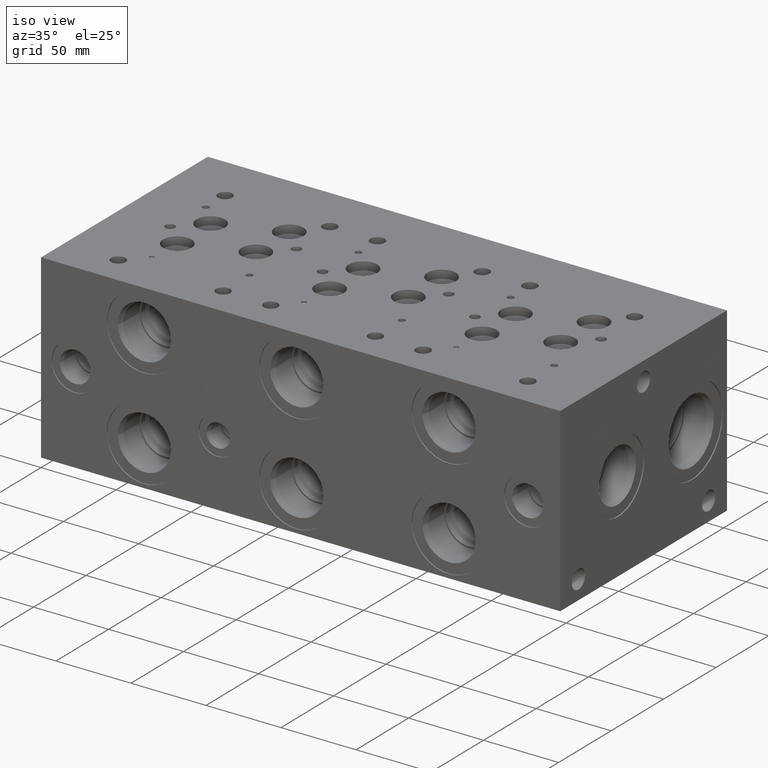
[diagram: clean part render]
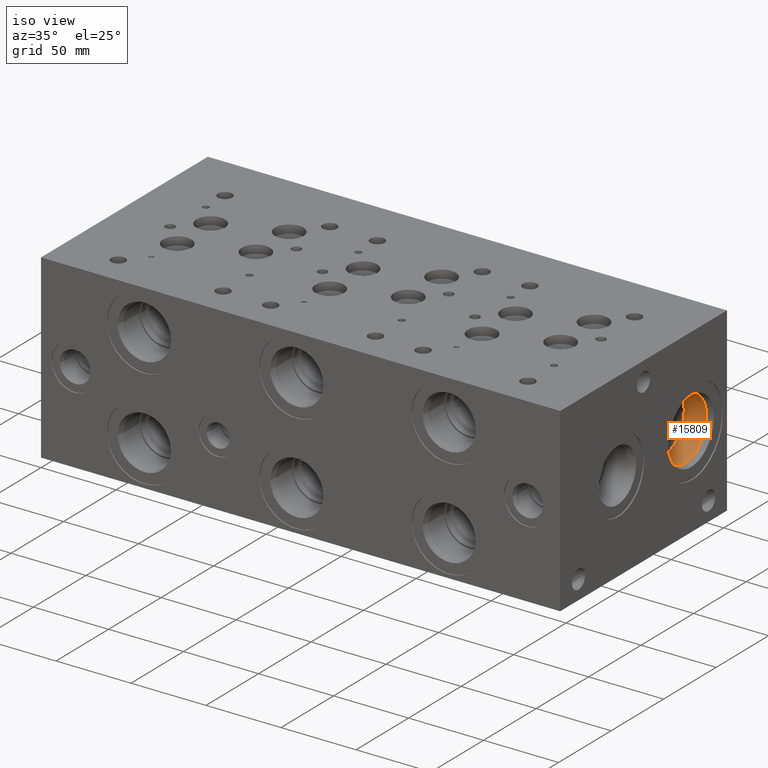
[diagram: same view with one face highlighted and labeled with its STEP entity id]
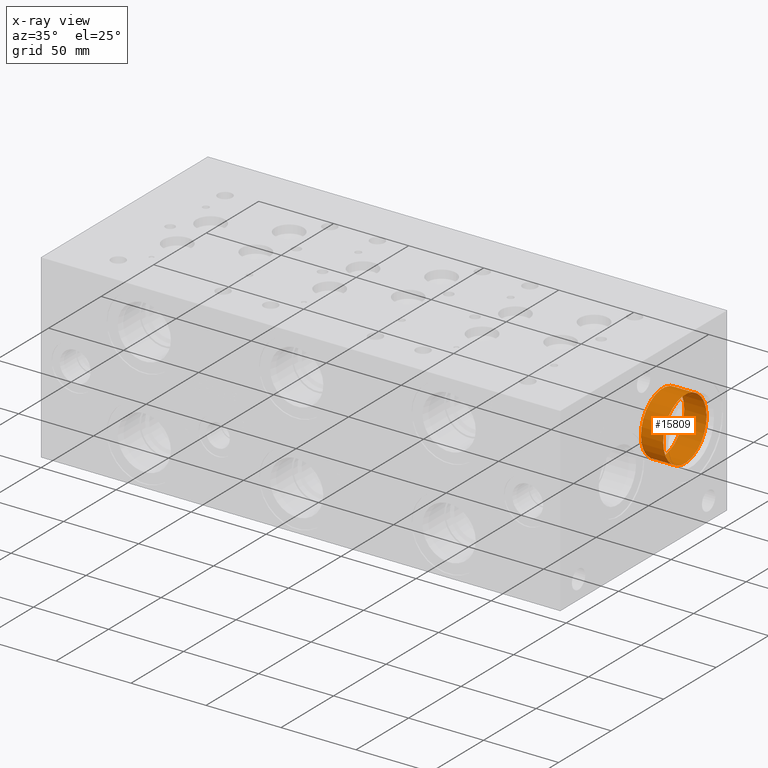
[diagram: x-ray of the same camera — body ghosted, the highlighted face saturated]
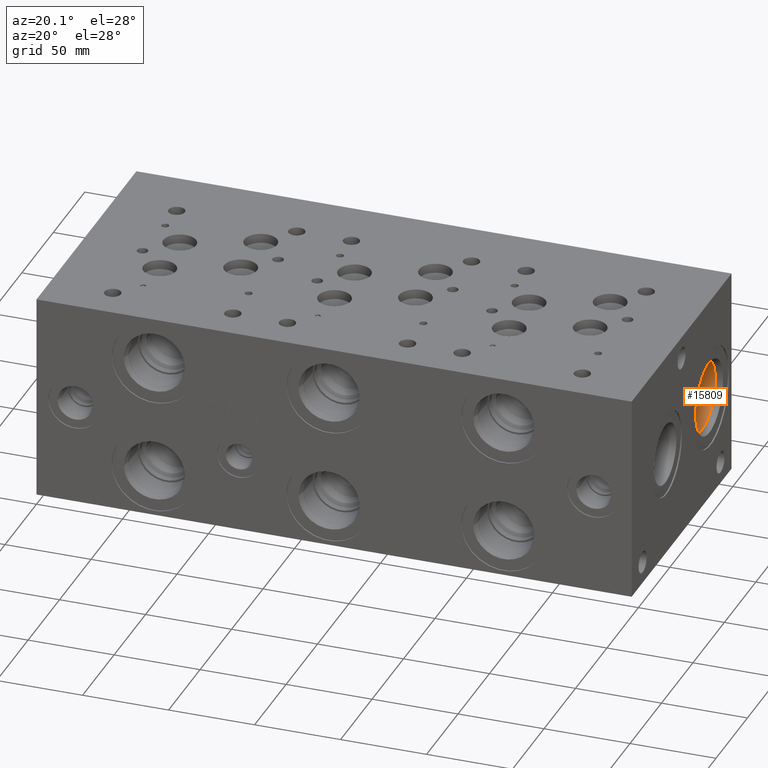
[diagram: same view with one face highlighted and labeled with its STEP entity id]
A machine part, iso view. The second image highlights one B-rep face of the part: STEP entity #15809.
The next image is the same camera in x-ray: the body ghosted, the highlighted face saturated — about 0% of this face is hidden behind the body in this view.
A second angle (auxiliary view) of the same face is appended — the face is thin or edge-on in the first view.
In plain terms, the highlighted cylindrical surface (bore or boss wall) has radius 20.6375 mm, axis along (1, 0, 0).
Its self-contained STEP definition (entity closure, byte-faithful):
#15=CYLINDRICAL_SURFACE('',#16559,20.6375);
#307=CIRCLE('',#16556,20.6375);
#308=CIRCLE('',#16557,20.6375);
#310=CIRCLE('',#16560,20.6375);
#1943=FACE_OUTER_BOUND('',#2860,.T.);
#2860=EDGE_LOOP('',(#12813,#12814,#12815,#12816,#12817));
#4410=LINE('',#26242,#5819);
#5819=VECTOR('',#19361,20.6375);
#7091=VERTEX_POINT('',#26233);
#7092=VERTEX_POINT('',#26234);
#7094=VERTEX_POINT('',#26240);
#9131=EDGE_CURVE('',#7091,#7092,#307,.T.);
#9132=EDGE_CURVE('',#7092,#7091,#308,.T.);
#9134=EDGE_CURVE('',#7094,#7094,#310,.T.);
#9135=EDGE_CURVE('',#7094,#7092,#4410,.T.);
#12813=ORIENTED_EDGE('',*,*,#9134,.F.);
#12814=ORIENTED_EDGE('',*,*,#9135,.T.);
#12815=ORIENTED_EDGE('',*,*,#9131,.F.);
#12816=ORIENTED_EDGE('',*,*,#9132,.F.);
#12817=ORIENTED_EDGE('',*,*,#9135,.F.);
#15809=ADVANCED_FACE('',(#1943),#15,.F.);
#16556=AXIS2_PLACEMENT_3D('',#26235,#19351,#19352);
#16557=AXIS2_PLACEMENT_3D('',#26236,#19353,#19354);
#16559=AXIS2_PLACEMENT_3D('',#26239,#19357,#19358);
#16560=AXIS2_PLACEMENT_3D('',#26241,#19359,#19360);
#19351=DIRECTION('center_axis',(1.,0.,0.));
#19352=DIRECTION('ref_axis',(0.,1.,0.));
#19353=DIRECTION('center_axis',(1.,0.,0.));
#19354=DIRECTION('ref_axis',(0.,1.,0.));
#19357=DIRECTION('center_axis',(1.,0.,0.));
#19358=DIRECTION('ref_axis',(0.,1.,0.));
#19359=DIRECTION('center_axis',(-1.,0.,0.));
#19360=DIRECTION('ref_axis',(0.,1.,0.));
#19361=DIRECTION('',(-1.,0.,0.));
#26233=CARTESIAN_POINT('',(326.2376,146.4691,60.325));
#26234=CARTESIAN_POINT('',(326.2376,105.1941,60.325));
#26235=CARTESIAN_POINT('Origin',(326.2376,125.8316,60.325));
#26236=CARTESIAN_POINT('Origin',(326.2376,125.8316,60.325));
#26239=CARTESIAN_POINT('Origin',(336.1563,125.8316,60.325));
#26240=CARTESIAN_POINT('',(341.104000017461,105.1941,60.325));
#26241=CARTESIAN_POINT('Origin',(341.104000017461,125.8316,60.325));
#26242=CARTESIAN_POINT('',(336.1563,105.1941,60.325));